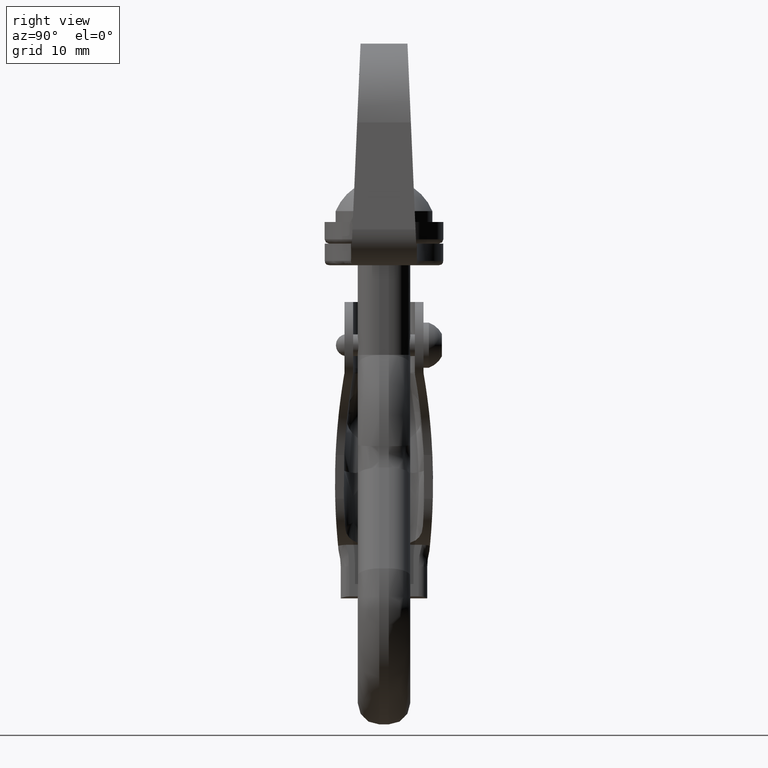
[diagram: clean part render]
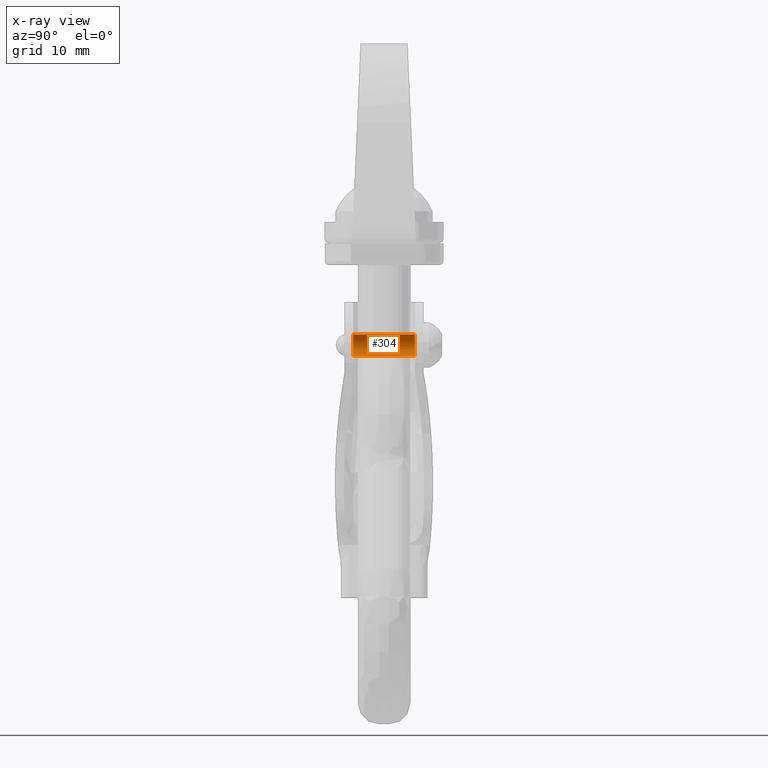
[diagram: x-ray — body ghosted, one internal face saturated and labeled with its STEP entity id]
A machine part, right view, then the same camera in x-ray: the body is ghosted and one INTERNAL B-rep face — a face not visible from any outside direction — is saturated and labeled: STEP entity #304.
In plain terms, the highlighted cylindrical surface (edge-blend (fillet) strip) has radius 1.254 mm, axis along (0, -1, 0).
Its self-contained STEP definition (entity closure, byte-faithful):
#304=ADVANCED_FACE('',(#1869),#1868,.T.);
#1868=CYLINDRICAL_SURFACE('',#3951,1.25396825397E+00);
#1869=FACE_OUTER_BOUND('',#3952,.T.);
#3948=CARTESIAN_POINT('',(0.00000000000E+00,0.00000000000E+00,5.68434188608E-14));
#3949=DIRECTION('',(0.00000000000E+00,-1.00000000000E+00,-0.00000000000E+00));
#3950=DIRECTION('',(-0.00000000000E+00,-0.00000000000E+00,-1.00000000000E+00));
#3951=AXIS2_PLACEMENT_3D('',#3948,#3949,#3950);
#3952=EDGE_LOOP('',(#4811,#4812,#4813,#4814));
#4811=ORIENTED_EDGE('',*,*,#5206,.T.);
#4812=ORIENTED_EDGE('',*,*,#5254,.T.);
#4813=ORIENTED_EDGE('',*,*,#5087,.T.);
#4814=ORIENTED_EDGE('',*,*,#5255,.F.);
#5087=EDGE_CURVE('',#6929,#6930,#6931,.T.);
#5206=EDGE_CURVE('',#7728,#7729,#7730,.T.);
#5254=EDGE_CURVE('',#7729,#6929,#8033,.T.);
#5255=EDGE_CURVE('',#7728,#6930,#8039,.T.);
#6929=VERTEX_POINT('',#9307);
#6930=VERTEX_POINT('',#9308);
#6931=CIRCLE('',#9312,1.25396825397E+00);
#7728=VERTEX_POINT('',#10204);
#7729=VERTEX_POINT('',#10205);
#7730=CIRCLE('',#10209,1.25396825397E+00);
#8033=(BOUNDED_CURVE() B_SPLINE_CURVE(1,(#10473,#10474),.UNSPECIFIED.,.F.,.F.) B_SPLINE_CURVE_WITH_KNOTS((2,2),(8.33333320912E-02,9.16666664070E-01),.UNSPECIFIED.) CURVE() GEOMETRIC_REPRESENTATION_ITEM() RATIONAL_B_SPLINE_CURVE((1.00000000000E+00,1.00000000000E+00)) REPRESENTATION_ITEM('') );
#8039=(BOUNDED_CURVE() B_SPLINE_CURVE(1,(#10475,#10476),.UNSPECIFIED.,.F.,.F.) B_SPLINE_CURVE_WITH_KNOTS((2,2),(8.33333333334E-02,9.16666666667E-01),.UNSPECIFIED.) CURVE() GEOMETRIC_REPRESENTATION_ITEM() RATIONAL_B_SPLINE_CURVE((7.50000000000E-01,7.50000000000E-01)) REPRESENTATION_ITEM('') );
#9307=CARTESIAN_POINT('',(7.40148683083E-17,-3.57698412699E+00,-1.25396825397E+00));
#9308=CARTESIAN_POINT('',(0.00000000000E+00,-3.57698412699E+00,1.25396825397E+00));
#9309=CARTESIAN_POINT('',(0.00000000000E+00,-3.57698412699E+00,5.68434188608E-14));
#9310=DIRECTION('',(0.00000000000E+00,1.00000000000E+00,-2.30241896648E-13));
#9311=DIRECTION('',(-1.22460635382E-16,2.30241896648E-13,1.00000000000E+00));
#9312=AXIS2_PLACEMENT_3D('',#9309,#9310,#9311);
#10204=CARTESIAN_POINT('',(7.40148683083E-17,3.57698412699E+00,1.25396825397E+00));
#10205=CARTESIAN_POINT('',(0.00000000000E+00,3.57698412699E+00,-1.25396825397E+00));
#10206=CARTESIAN_POINT('',(0.00000000000E+00,3.57698412699E+00,5.68434188608E-14));
#10207=DIRECTION('',(0.00000000000E+00,-1.00000000000E+00,-2.28647147580E-13));
#10208=DIRECTION('',(-1.22460635382E-16,2.28647147580E-13,-1.00000000000E+00));
#10209=AXIS2_PLACEMENT_3D('',#10206,#10207,#10208);
#10473=CARTESIAN_POINT('',(0.00000000000E+00,3.57698413765E+00,-1.25396825397E+00));
#10474=CARTESIAN_POINT('',(0.00000000000E+00,-3.57698410470E+00,-1.25396825397E+00));
#10475=CARTESIAN_POINT('',(-7.40148683083E-17,3.57698412699E+00,1.25396825397E+00));
#10476=CARTESIAN_POINT('',(-7.40148683083E-17,-3.57698412699E+00,1.25396825397E+00));